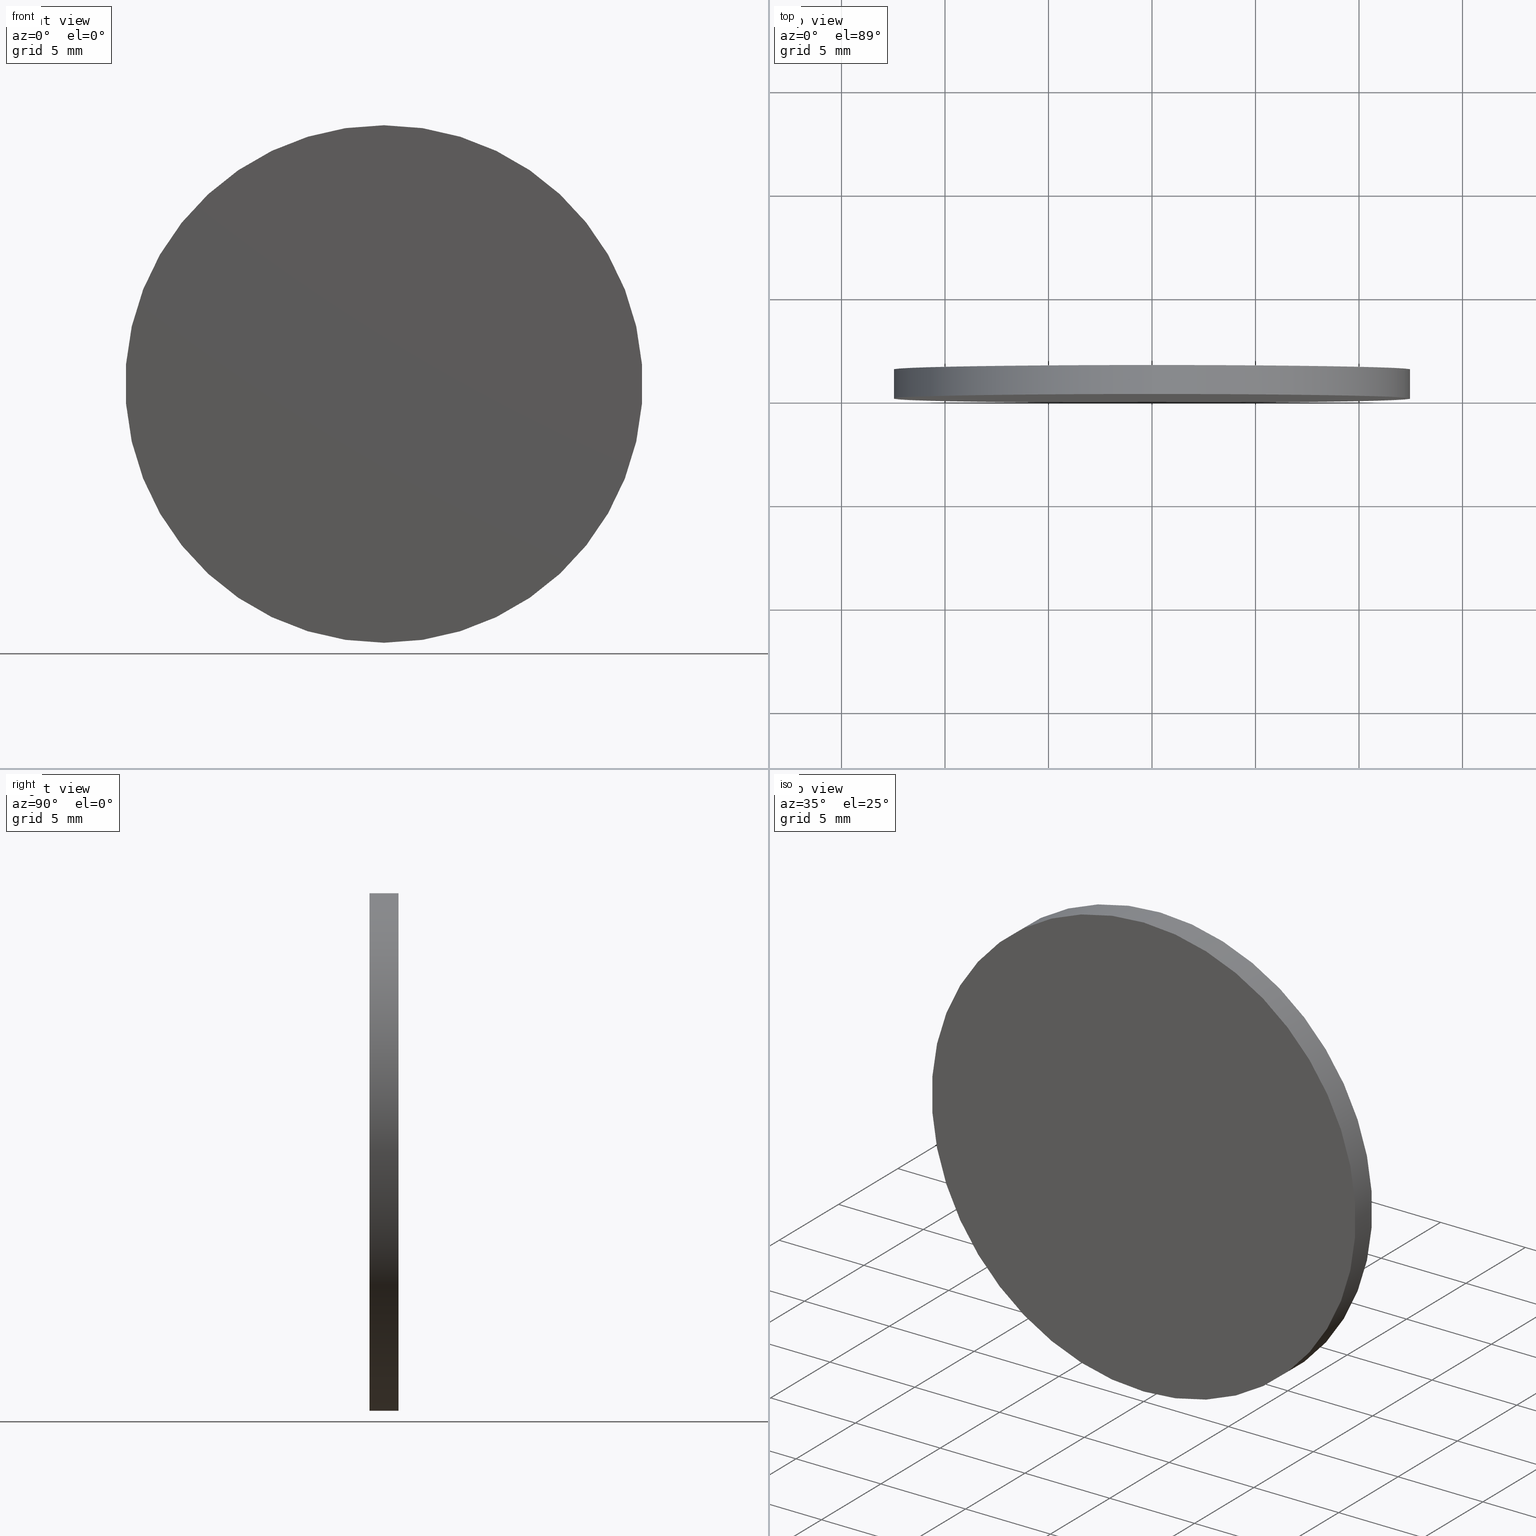
[diagram: canonical four-view strip — front | top / right | iso, engineering-drawing reading convention]
A machine part, canonical four-view strip (front | top / right | iso — engineering-drawing reading convention). The complete STEP part file that produces these views, byte-faithful:
ISO-10303-21;
HEADER;
FILE_DESCRIPTION (( 'STEP AP214' ),
    '1' );
FILE_NAME ('248587.STEP',
    '2019-08-06T03:25:57',
    ( 'user' ),
    ( '΢���й�' ),
    'SwSTEP 2.0',
    'SolidWorks 2016',
    '' );
FILE_SCHEMA (( 'AUTOMOTIVE_DESIGN' ));
ENDSEC;

DATA;
#1 = DIRECTION ( 'NONE',  ( 0.0000000000000000000, 0.0000000000000000000, -1.000000000000000000 ) ) ;
#2 = PRODUCT_DEFINITION_SHAPE ( 'NONE', 'NONE',  #139 ) ;
#3 = PRESENTATION_LAYER_ASSIGNMENT (  '', '', ( #32 ) ) ;
#4 = CIRCLE ( 'NONE', #116, 12.50000000000000000 ) ;
#5 = COLOUR_RGB ( '',1.000000000000000000, 1.000000000000000000, 1.000000000000000000 ) ;
#6 = SURFACE_STYLE_FILL_AREA ( #9 ) ;
#7 = DIRECTION ( 'NONE',  ( 0.0000000000000000000, 0.0000000000000000000, 1.000000000000000000 ) ) ;
#8 = ORIENTED_EDGE ( 'NONE', *, *, #52, .T. ) ;
#9 = FILL_AREA_STYLE ('',( #99 ) ) ;
#10 = FILL_AREA_STYLE ('',( #63 ) ) ;
#11 = CARTESIAN_POINT ( 'NONE',  ( 0.0000000000000000000, 1.399999999999999900, 0.0000000000000000000 ) ) ;
#12 = DIRECTION ( 'NONE',  ( -0.0000000000000000000, -1.000000000000000000, -0.0000000000000000000 ) ) ;
#13 = CLOSED_SHELL ( 'NONE', ( #58, #35, #46, #60 ) ) ;
#14 = AXIS2_PLACEMENT_3D ( 'NONE', #108, #59, #62 ) ;
#15 = AXIS2_PLACEMENT_3D ( 'NONE', #55, #91, #121 ) ;
#16 = PRESENTATION_LAYER_ASSIGNMENT (  '', '', ( #130 ) ) ;
#17 = VECTOR ( 'NONE', #12, 1000.000000000000000 ) ;
#18 = PLANE ( 'NONE',  #50 ) ;
#19 = VERTEX_POINT ( 'NONE', #93 ) ;
#20 =( LENGTH_UNIT ( ) NAMED_UNIT ( * ) SI_UNIT ( .MILLI., .METRE. ) );
#21 = DIRECTION ( 'NONE',  ( 0.0000000000000000000, -0.0000000000000000000, 1.000000000000000000 ) ) ;
#22 = ORIENTED_EDGE ( 'NONE', *, *, #119, .T. ) ;
#23 = ORIENTED_EDGE ( 'NONE', *, *, #81, .F. ) ;
#24 = SHAPE_DEFINITION_REPRESENTATION ( #2, #41 ) ;
#25 = EDGE_LOOP ( 'NONE', ( #48, #51 ) ) ;
#26 = CARTESIAN_POINT ( 'NONE',  ( 0.0000000000000000000, 0.0000000000000000000, 0.0000000000000000000 ) ) ;
#27 = UNCERTAINTY_MEASURE_WITH_UNIT (LENGTH_MEASURE( 1.000000000000000100E-005 ), #33, 'distance_accuracy_value', 'NONE');
#28 = APPLICATION_CONTEXT ( 'automotive_design' ) ;
#29 = ORIENTED_EDGE ( 'NONE', *, *, #75, .T. ) ;
#30 = UNCERTAINTY_MEASURE_WITH_UNIT (LENGTH_MEASURE( 1.000000000000000100E-005 ), #20, 'distance_accuracy_value', 'NONE');
#31 = VERTEX_POINT ( 'NONE', #111 ) ;
#32 = STYLED_ITEM ( 'NONE', ( #76 ), #41 ) ;
#33 =( LENGTH_UNIT ( ) NAMED_UNIT ( * ) SI_UNIT ( .MILLI., .METRE. ) );
#34 = CARTESIAN_POINT ( 'NONE',  ( 0.0000000000000000000, 0.0000000000000000000, 0.0000000000000000000 ) ) ;
#35 = ADVANCED_FACE ( 'NONE', ( #83 ), #95, .T. ) ;
#36 = CARTESIAN_POINT ( 'NONE',  ( 0.0000000000000000000, 0.0000000000000000000, -12.50000000000000000 ) ) ;
#37 = DIRECTION ( 'NONE',  ( 0.0000000000000000000, 1.000000000000000000, 0.0000000000000000000 ) ) ;
#38 = EDGE_CURVE ( 'NONE', #19, #132, #127, .T. ) ;
#39 =( GEOMETRIC_REPRESENTATION_CONTEXT ( 3 ) GLOBAL_UNCERTAINTY_ASSIGNED_CONTEXT ( ( #128 ) ) GLOBAL_UNIT_ASSIGNED_CONTEXT ( ( #140, #98, #86 ) ) REPRESENTATION_CONTEXT ( 'NONE', 'WORKASPACE' ) );
#40 = EDGE_LOOP ( 'NONE', ( #23, #70, #78, #29 ) ) ;
#41 = ADVANCED_BREP_SHAPE_REPRESENTATION ( '248587', ( #120, #15 ), #39 ) ;
#42 = AXIS2_PLACEMENT_3D ( 'NONE', #34, #124, #88 ) ;
#43 = DIRECTION ( 'NONE',  ( 0.0000000000000000000, 0.0000000000000000000, 1.000000000000000000 ) ) ;
#44 = VERTEX_POINT ( 'NONE', #135 ) ;
#45 =( GEOMETRIC_REPRESENTATION_CONTEXT ( 3 ) GLOBAL_UNCERTAINTY_ASSIGNED_CONTEXT ( ( #30 ) ) GLOBAL_UNIT_ASSIGNED_CONTEXT ( ( #20, #110, #69 ) ) REPRESENTATION_CONTEXT ( 'NONE', 'WORKASPACE' ) );
#46 = ADVANCED_FACE ( 'NONE', ( #97 ), #136, .T. ) ;
#47 =( NAMED_UNIT ( * ) PLANE_ANGLE_UNIT ( ) SI_UNIT ( $, .RADIAN. ) );
#48 = ORIENTED_EDGE ( 'NONE', *, *, #75, .F. ) ;
#49 = SURFACE_STYLE_FILL_AREA ( #10 ) ;
#50 = AXIS2_PLACEMENT_3D ( 'NONE', #26, #131, #71 ) ;
#51 = ORIENTED_EDGE ( 'NONE', *, *, #119, .F. ) ;
#52 = EDGE_CURVE ( 'NONE', #19, #31, #73, .T. ) ;
#53 = APPLICATION_PROTOCOL_DEFINITION ( 'draft international standard', 'automotive_design', 1998, #102 ) ;
#54 = ORIENTED_EDGE ( 'NONE', *, *, #38, .F. ) ;
#55 = CARTESIAN_POINT ( 'NONE',  ( 0.0000000000000000000, 0.0000000000000000000, 0.0000000000000000000 ) ) ;
#56 = DIRECTION ( 'NONE',  ( -0.0000000000000000000, -1.000000000000000000, -0.0000000000000000000 ) ) ;
#57 = DIRECTION ( 'NONE',  ( 0.0000000000000000000, 1.000000000000000000, 0.0000000000000000000 ) ) ;
#58 = ADVANCED_FACE ( 'NONE', ( #89 ), #117, .T. ) ;
#59 = DIRECTION ( 'NONE',  ( -0.0000000000000000000, -1.000000000000000000, -0.0000000000000000000 ) ) ;
#60 = ADVANCED_FACE ( 'NONE', ( #109 ), #18, .F. ) ;
#61 = ORIENTED_EDGE ( 'NONE', *, *, #67, .F. ) ;
#62 = DIRECTION ( 'NONE',  ( 0.0000000000000000000, 0.0000000000000000000, -1.000000000000000000 ) ) ;
#63 = FILL_AREA_STYLE_COLOUR ( '', #5 ) ;
#64 = ORIENTED_EDGE ( 'NONE', *, *, #67, .T. ) ;
#65 =( GEOMETRIC_REPRESENTATION_CONTEXT ( 3 ) GLOBAL_UNCERTAINTY_ASSIGNED_CONTEXT ( ( #27 ) ) GLOBAL_UNIT_ASSIGNED_CONTEXT ( ( #33, #47, #134 ) ) REPRESENTATION_CONTEXT ( 'NONE', 'WORKASPACE' ) );
#66 = EDGE_LOOP ( 'NONE', ( #61, #137, #22, #54 ) ) ;
#67 = EDGE_CURVE ( 'NONE', #31, #19, #114, .T. ) ;
#68 = PRODUCT_CONTEXT ( 'NONE', #28, 'mechanical' ) ;
#69 =( NAMED_UNIT ( * ) SI_UNIT ( $, .STERADIAN. ) SOLID_ANGLE_UNIT ( ) );
#70 = ORIENTED_EDGE ( 'NONE', *, *, #52, .F. ) ;
#71 = DIRECTION ( 'NONE',  ( 0.0000000000000000000, -0.0000000000000000000, 1.000000000000000000 ) ) ;
#72 = PRODUCT ( '248587', '248587', '', ( #68 ) ) ;
#73 = CIRCLE ( 'NONE', #84, 12.50000000000000000 ) ;
#74 = PRODUCT_DEFINITION_FORMATION_WITH_SPECIFIED_SOURCE ( '�κ�', '', #72, .NOT_KNOWN. ) ;
#75 = EDGE_CURVE ( 'NONE', #132, #44, #4, .T. ) ;
#76 = PRESENTATION_STYLE_ASSIGNMENT (( #113 ) ) ;
#77 = DIRECTION ( 'NONE',  ( 0.0000000000000000000, 1.000000000000000000, 0.0000000000000000000 ) ) ;
#78 = ORIENTED_EDGE ( 'NONE', *, *, #38, .T. ) ;
#79 = CARTESIAN_POINT ( 'NONE',  ( 0.0000000000000000000, 0.0000000000000000000, 0.0000000000000000000 ) ) ;
#80 = VECTOR ( 'NONE', #56, 1000.000000000000000 ) ;
#81 = EDGE_CURVE ( 'NONE', #31, #44, #103, .T. ) ;
#82 = SURFACE_STYLE_USAGE ( .BOTH. , #90 ) ;
#83 = FACE_OUTER_BOUND ( 'NONE', #40, .T. ) ;
#84 = AXIS2_PLACEMENT_3D ( 'NONE', #126, #112, #100 ) ;
#85 = SURFACE_SIDE_STYLE ('',( #6 ) ) ;
#86 =( NAMED_UNIT ( * ) SI_UNIT ( $, .STERADIAN. ) SOLID_ANGLE_UNIT ( ) );
#87 = APPLICATION_PROTOCOL_DEFINITION ( 'draft international standard', 'automotive_design', 1998, #28 ) ;
#88 = DIRECTION ( 'NONE',  ( 0.0000000000000000000, 0.0000000000000000000, 1.000000000000000000 ) ) ;
#89 = FACE_OUTER_BOUND ( 'NONE', #66, .T. ) ;
#90 = SURFACE_SIDE_STYLE ('',( #49 ) ) ;
#91 = DIRECTION ( 'NONE',  ( 0.0000000000000000000, 0.0000000000000000000, 1.000000000000000000 ) ) ;
#92 = CARTESIAN_POINT ( 'NONE',  ( 0.0000000000000000000, 1.399999999999999900, 0.0000000000000000000 ) ) ;
#93 = CARTESIAN_POINT ( 'NONE',  ( 0.0000000000000000000, 1.399999999999999900, -12.50000000000000000 ) ) ;
#94 = AXIS2_PLACEMENT_3D ( 'NONE', #138, #123, #1 ) ;
#95 = CYLINDRICAL_SURFACE ( 'NONE', #14, 12.50000000000000000 ) ;
#96 = PRODUCT_RELATED_PRODUCT_CATEGORY ( 'part', '', ( #72 ) ) ;
#97 = FACE_OUTER_BOUND ( 'NONE', #125, .T. ) ;
#98 =( NAMED_UNIT ( * ) PLANE_ANGLE_UNIT ( ) SI_UNIT ( $, .RADIAN. ) );
#99 = FILL_AREA_STYLE_COLOUR ( '', #105 ) ;
#100 = DIRECTION ( 'NONE',  ( 0.0000000000000000000, 0.0000000000000000000, 1.000000000000000000 ) ) ;
#101 = AXIS2_PLACEMENT_3D ( 'NONE', #92, #57, #21 ) ;
#102 = APPLICATION_CONTEXT ( 'automotive_design' ) ;
#103 = LINE ( 'NONE', #122, #17 ) ;
#104 = CARTESIAN_POINT ( 'NONE',  ( 0.0000000000000000000, 1.399999999999999900, -12.50000000000000000 ) ) ;
#105 = COLOUR_RGB ( '',1.000000000000000000, 1.000000000000000000, 1.000000000000000000 ) ;
#106 = MECHANICAL_DESIGN_GEOMETRIC_PRESENTATION_REPRESENTATION (  '', ( #130 ), #65 ) ;
#107 = AXIS2_PLACEMENT_3D ( 'NONE', #11, #37, #43 ) ;
#108 = CARTESIAN_POINT ( 'NONE',  ( 0.0000000000000000000, 1.399999999999999900, 0.0000000000000000000 ) ) ;
#109 = FACE_OUTER_BOUND ( 'NONE', #25, .T. ) ;
#110 =( NAMED_UNIT ( * ) PLANE_ANGLE_UNIT ( ) SI_UNIT ( $, .RADIAN. ) );
#111 = CARTESIAN_POINT ( 'NONE',  ( 1.530808498934191500E-015, 1.399999999999999900, 12.50000000000000000 ) ) ;
#112 = DIRECTION ( 'NONE',  ( 0.0000000000000000000, 1.000000000000000000, 0.0000000000000000000 ) ) ;
#113 = SURFACE_STYLE_USAGE ( .BOTH. , #85 ) ;
#114 = CIRCLE ( 'NONE', #107, 12.50000000000000000 ) ;
#115 = MECHANICAL_DESIGN_GEOMETRIC_PRESENTATION_REPRESENTATION (  '', ( #32 ), #45 ) ;
#116 = AXIS2_PLACEMENT_3D ( 'NONE', #79, #77, #7 ) ;
#117 = CYLINDRICAL_SURFACE ( 'NONE', #94, 12.50000000000000000 ) ;
#118 = PRESENTATION_STYLE_ASSIGNMENT (( #82 ) ) ;
#119 = EDGE_CURVE ( 'NONE', #44, #132, #133, .T. ) ;
#120 = MANIFOLD_SOLID_BREP ( '͹̨-����1', #13 ) ;
#121 = DIRECTION ( 'NONE',  ( 1.000000000000000000, 0.0000000000000000000, 0.0000000000000000000 ) ) ;
#122 = CARTESIAN_POINT ( 'NONE',  ( 1.530808498934191500E-015, 1.399999999999999900, 12.50000000000000000 ) ) ;
#123 = DIRECTION ( 'NONE',  ( -0.0000000000000000000, -1.000000000000000000, -0.0000000000000000000 ) ) ;
#124 = DIRECTION ( 'NONE',  ( 0.0000000000000000000, 1.000000000000000000, 0.0000000000000000000 ) ) ;
#125 = EDGE_LOOP ( 'NONE', ( #8, #64 ) ) ;
#126 = CARTESIAN_POINT ( 'NONE',  ( 0.0000000000000000000, 1.399999999999999900, 0.0000000000000000000 ) ) ;
#127 = LINE ( 'NONE', #104, #80 ) ;
#128 = UNCERTAINTY_MEASURE_WITH_UNIT (LENGTH_MEASURE( 1.000000000000000100E-005 ), #140, 'distance_accuracy_value', 'NONE');
#129 = PRODUCT_DEFINITION_CONTEXT ( 'detailed design', #102, 'design' ) ;
#130 = STYLED_ITEM ( 'NONE', ( #118 ), #120 ) ;
#131 = DIRECTION ( 'NONE',  ( 0.0000000000000000000, 1.000000000000000000, 0.0000000000000000000 ) ) ;
#132 = VERTEX_POINT ( 'NONE', #36 ) ;
#133 = CIRCLE ( 'NONE', #42, 12.50000000000000000 ) ;
#134 =( NAMED_UNIT ( * ) SI_UNIT ( $, .STERADIAN. ) SOLID_ANGLE_UNIT ( ) );
#135 = CARTESIAN_POINT ( 'NONE',  ( 1.530808498934191500E-015, 0.0000000000000000000, 12.50000000000000000 ) ) ;
#136 = PLANE ( 'NONE',  #101 ) ;
#137 = ORIENTED_EDGE ( 'NONE', *, *, #81, .T. ) ;
#138 = CARTESIAN_POINT ( 'NONE',  ( 0.0000000000000000000, 1.399999999999999900, 0.0000000000000000000 ) ) ;
#139 = PRODUCT_DEFINITION ( 'δ֪', '', #74, #129 ) ;
#140 =( LENGTH_UNIT ( ) NAMED_UNIT ( * ) SI_UNIT ( .MILLI., .METRE. ) );
ENDSEC;
END-ISO-10303-21;
